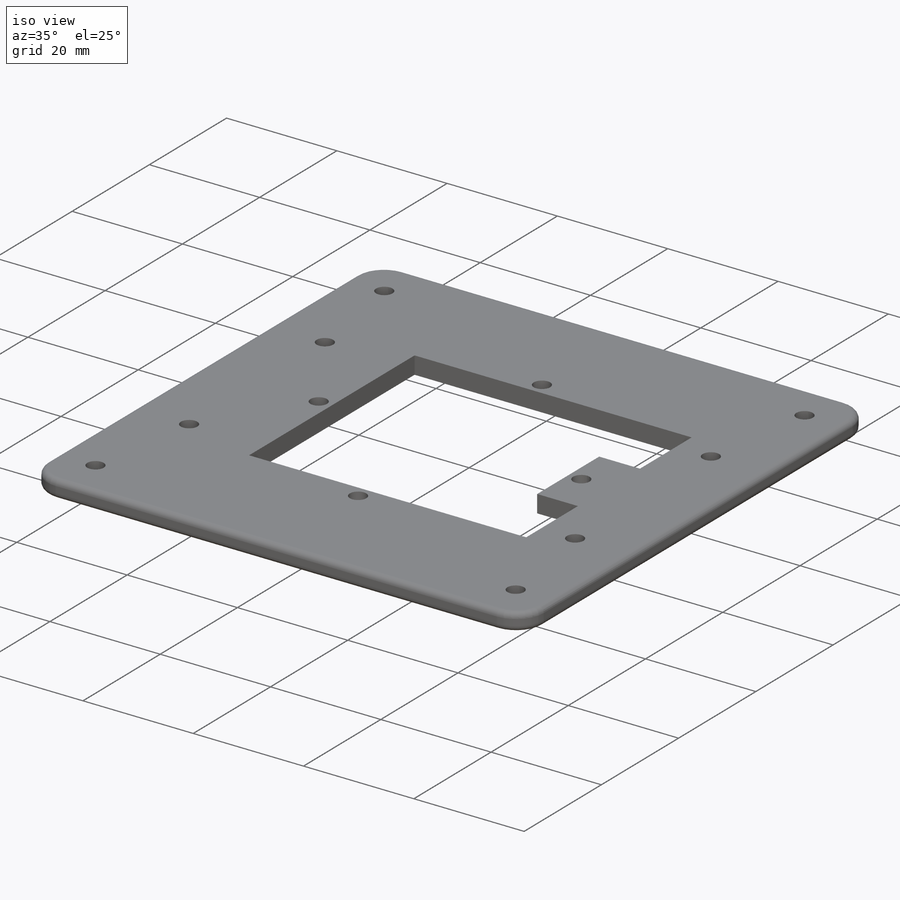
[diagram: iso view]
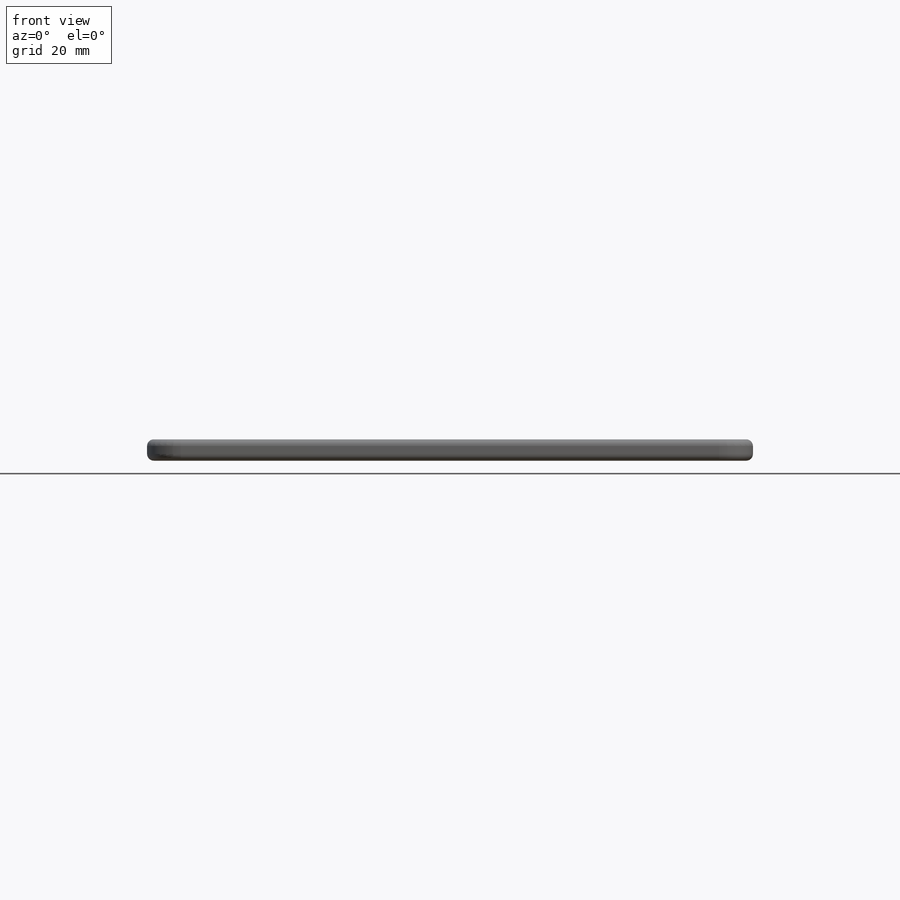
[diagram: front view]
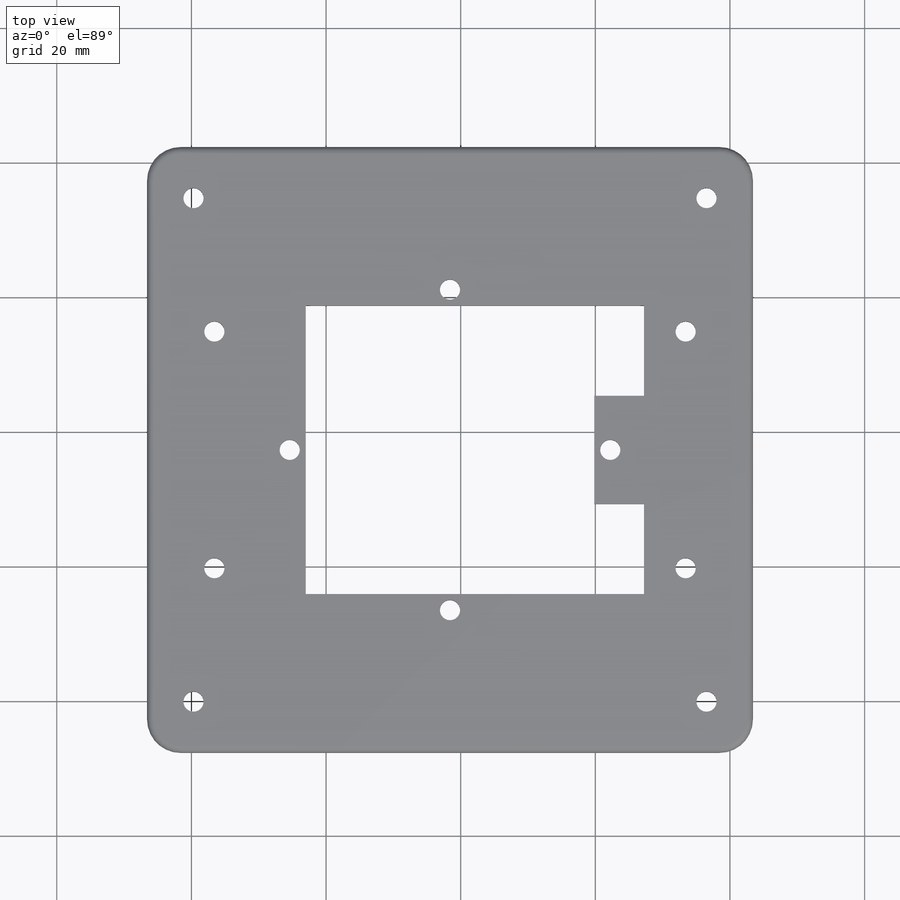
[diagram: top view]
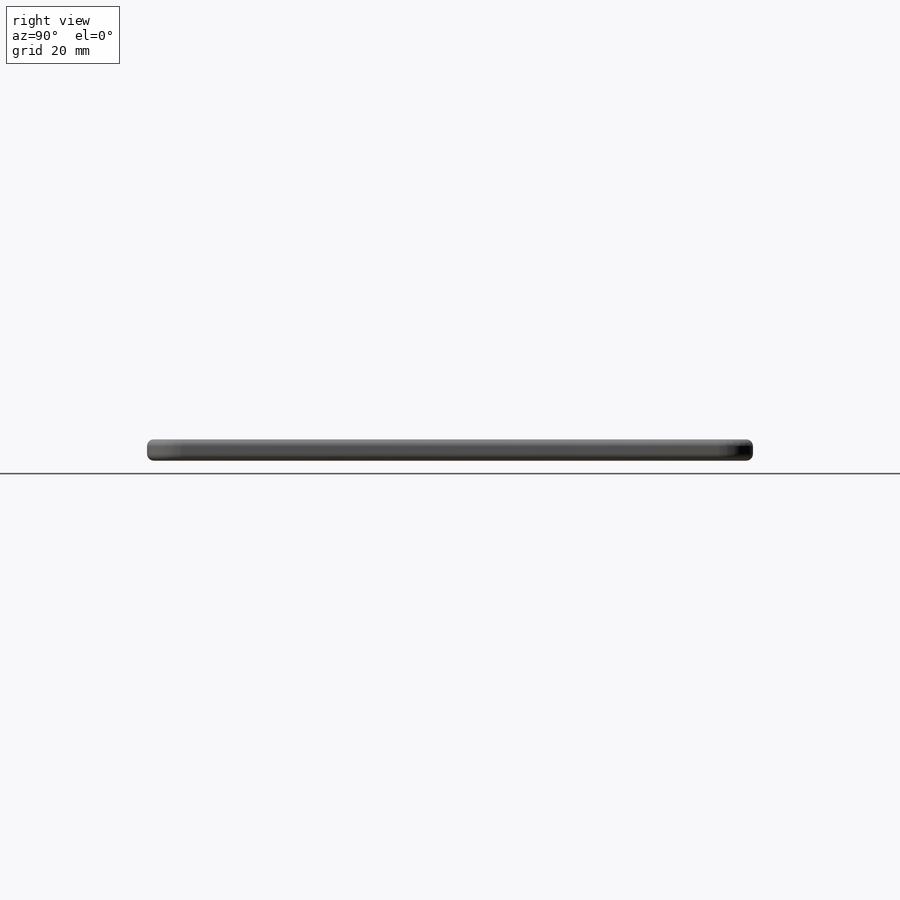
[diagram: right view]
SOLIDWORKS PART (.sldprt)
format: sldprt  version: not decoded by parser v0  size: 409,600 bytes
history: native  units: mm
features: sketch x8, extrude x3, hole x3, plane x2, material x1, cut_extrude x1, pattern_linear x1, pattern_circular x1, fillet x1 + 1 further entry (+15 scaffold rows collapsed)
feature tree (37):
  scaffold x15  (default folders/planes/origin — collapsed)
  material  "Material <not specified>"
  "Annotations"  RD1=47.62mm RD2=47.62mm RD3=10mm RD4=70mm RD5=35.161468mm RD6=70mm
  sketch  "Sketch2"  dims[c1.D11=3.0mm c1.D12=3.0mm c1.D13=3.0mm c1.D14=3.0mm c1.D15=3.0mm c1.D16=3.0mm c1.D17=3.0mm c1.D3=5.0mm c1.D1=~18.288828mm c1.D2=~18.392343mm c2.D3=~18.345146mm c2.D4=~18.241104mm c2.D5=~2.334743mm c2.D6=~2.436029mm c2.D7=~2.375739mm c2.D8=~2.487361mm c2.D9=42.855mm c2.D10=~42.855121mm c2.D18=90.0mm c2.D19=90.0mm c2.D20=~79.488568mm c2.D2=~47.625376mm c3.D3=~42.855121mm c3.D2=42.855mm c4.D3=~42.855121mm c4.D4=~13.408106mm c4.D5=~15.335979mm c4.D6=~13.408106mm c4.D7=45.0mm c4.D8=~15.335979mm c4.D10=~42.855121mm c5.D4=45.0mm c5.D5=~47.891276mm c5.D6=90.0deg c6.D5=42.855mm c6.D6=42.855mm]
  extrude  "Aluminum plate"  Depth=3.175mm
  extrude  "Axis2"  [1 undecoded]
  plane  "Plane8"
  plane  "Plane10"
  extrude  "Axis8"  [1 undecoded]
  sketch  "Sketch5"  dims[D2=~16.054242mm D3=~13.400379mm D1=2.0]
  cut_extrude  "Cut-Extrude18"  Depth=3.175mm
  hole  "Ø3.0 (3) Diameter Hole3"  Diameter=3mm Depth=25.4mm
  sketch  "Sketch13"  dims[D1=10.0mm]
  sketch  "Sketch12"  dims[hole-wizard template sketch: 47 standard entries collapsed; hole parameters kept: c15.Hole Depth=25.4mm c15.D3=~14.816244mm c15.Drill Angle=118.0deg]
  pattern_linear  "LPattern1"  Count1=2 Count2=2 Spacing1=70mm Spacing2=35.16147mm
  hole  "Ø3.0 (3) Diameter Hole4"  Diameter=3mm Depth=25.4mm
  sketch  "Sketch15"  dims[D1=23.81mm]
  sketch  "Sketch14"  dims[hole-wizard template sketch: 47 standard entries collapsed; hole parameters kept: c15.Hole Depth=25.4mm c15.D3=~14.816244mm c15.Drill Angle=118.0deg]
  pattern_circular  "CirPattern1"  Count=4 Angle=90deg
  hole  "Ø3.0 (3) Diameter Hole5"  Diameter=3mm Depth=25.4mm
  sketch  "Sketch17"  dims[c1.D1=~76.629861mm c1.D2=~76.199978mm c1.D3=~9.075759mm c1.D4=~9.505642mm c2.D3=~9.075759mm c2.D4=~9.505642mm c2.D5=~14.29438mm c2.D6=~14.29438mm c2.D7=~10.424482mm c2.D1=74.803mm c2.D2=74.803mm c3.D3=76.2mm c3.D4=76.2mm c3.D5=6.9mm c3.D6=7.5985mm c3.D7=6.9mm c3.D8=7.5985mm]
  sketch  "Sketch16"  dims[hole-wizard template sketch: 47 standard entries collapsed; hole parameters kept: c15.Hole Depth=25.4mm c15.D3=~14.816244mm c15.Drill Angle=118.0deg]
  fillet  "Fillet1"  Radius=1mm
decode coverage: 16 of 18 modeling features carry decoded parameters; 1 rows unclassified (native names shown)
note: ~ marks probable driven/reference dimensions
note: 2 parameter values undecoded
note: suppression state not decoded; provenance and decode notes live in map.json
